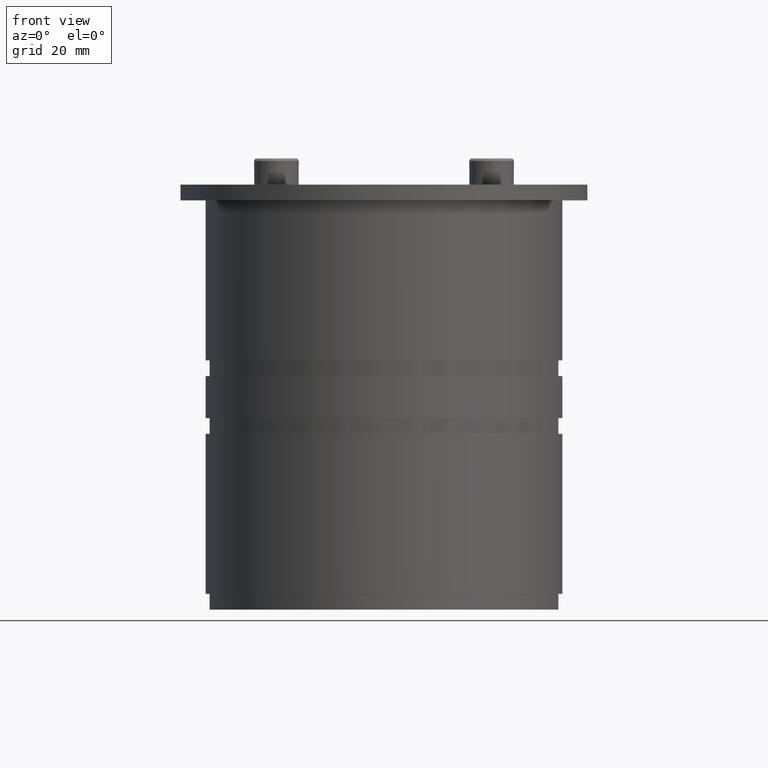
[diagram: clean part render]
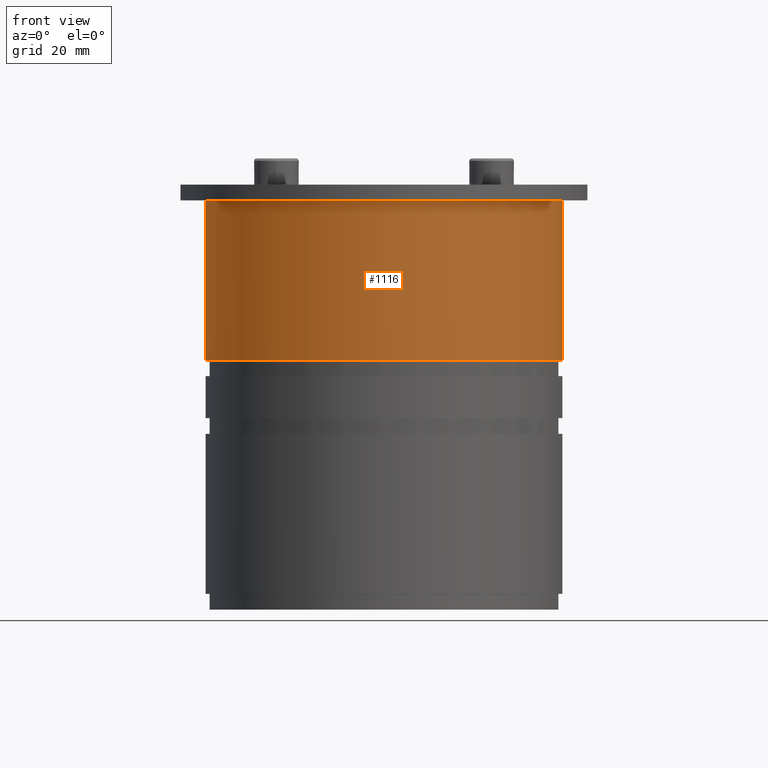
[diagram: same view with one face highlighted and labeled with its STEP entity id]
A machine part, front view. The second image highlights one B-rep face of the part: STEP entity #1116.
In plain terms, the highlighted cylindrical surface (partial cylindrical patch) has radius 34 mm, axis along (0, 0, -1).
Its self-contained STEP definition (entity closure, byte-faithful):
#1075=CARTESIAN_POINT('',(0.0,-16.999999999999886,-37.750000000000000));
#1076=DIRECTION('',(0.0,0.0,1.0));
#1077=DIRECTION('',(1.0,0.0,0.0));
#1078=AXIS2_PLACEMENT_3D('',#1075,#1076,#1077);
#1079=CYLINDRICAL_SURFACE('',#1078,34.0);
#1080=CARTESIAN_POINT('',(-33.999999999999091,-17.000000000000114,-7.250000000000000));
#1081=VERTEX_POINT('',#1080);
#1082=CARTESIAN_POINT('',(33.999999999999091,-16.999999999999886,-7.250000000000000));
#1083=VERTEX_POINT('',#1082);
#1084=CARTESIAN_POINT('',(0.0,-16.999999999999886,-7.250000000000000));
#1085=DIRECTION('',(0.0,0.0,-1.0));
#1086=DIRECTION('',(1.0,0.0,0.0));
#1087=AXIS2_PLACEMENT_3D('',#1084,#1085,#1086);
#1088=CIRCLE('',#1087,34.0);
#1089=EDGE_CURVE('',#1081,#1083,#1088,.T.);
#1090=ORIENTED_EDGE('',*,*,#1089,.T.);
#1091=CARTESIAN_POINT('',(33.999999999999091,-16.999999999999886,-37.750000000000000));
#1092=VERTEX_POINT('',#1091);
#1093=CARTESIAN_POINT('',(33.999999999999091,-16.999999999999886,-37.750000000000000));
#1094=DIRECTION('',(0.0,0.0,1.0));
#1095=VECTOR('',#1094,30.500000000000000);
#1096=LINE('',#1093,#1095);
#1097=EDGE_CURVE('',#1092,#1083,#1096,.T.);
#1098=ORIENTED_EDGE('',*,*,#1097,.F.);
#1099=CARTESIAN_POINT('',(-33.999999999999091,-17.000000000000114,-37.750000000000000));
#1100=VERTEX_POINT('',#1099);
#1101=CARTESIAN_POINT('',(0.0,-16.999999999999886,-37.750000000000000));
#1102=DIRECTION('',(0.0,0.0,1.0));
#1103=DIRECTION('',(1.0,0.0,0.0));
#1104=AXIS2_PLACEMENT_3D('',#1101,#1102,#1103);
#1105=CIRCLE('',#1104,34.0);
#1106=EDGE_CURVE('',#1092,#1100,#1105,.T.);
#1107=ORIENTED_EDGE('',*,*,#1106,.T.);
#1108=CARTESIAN_POINT('',(-33.999999999999091,-17.000000000000114,-37.750000000000000));
#1109=DIRECTION('',(0.0,0.0,1.0));
#1110=VECTOR('',#1109,30.500000000000000);
#1111=LINE('',#1108,#1110);
#1112=EDGE_CURVE('',#1100,#1081,#1111,.T.);
#1113=ORIENTED_EDGE('',*,*,#1112,.T.);
#1114=EDGE_LOOP('',(#1090,#1098,#1107,#1113));
#1115=FACE_OUTER_BOUND('',#1114,.F.);
#1116=ADVANCED_FACE('',(#1115),#1079,.F.);